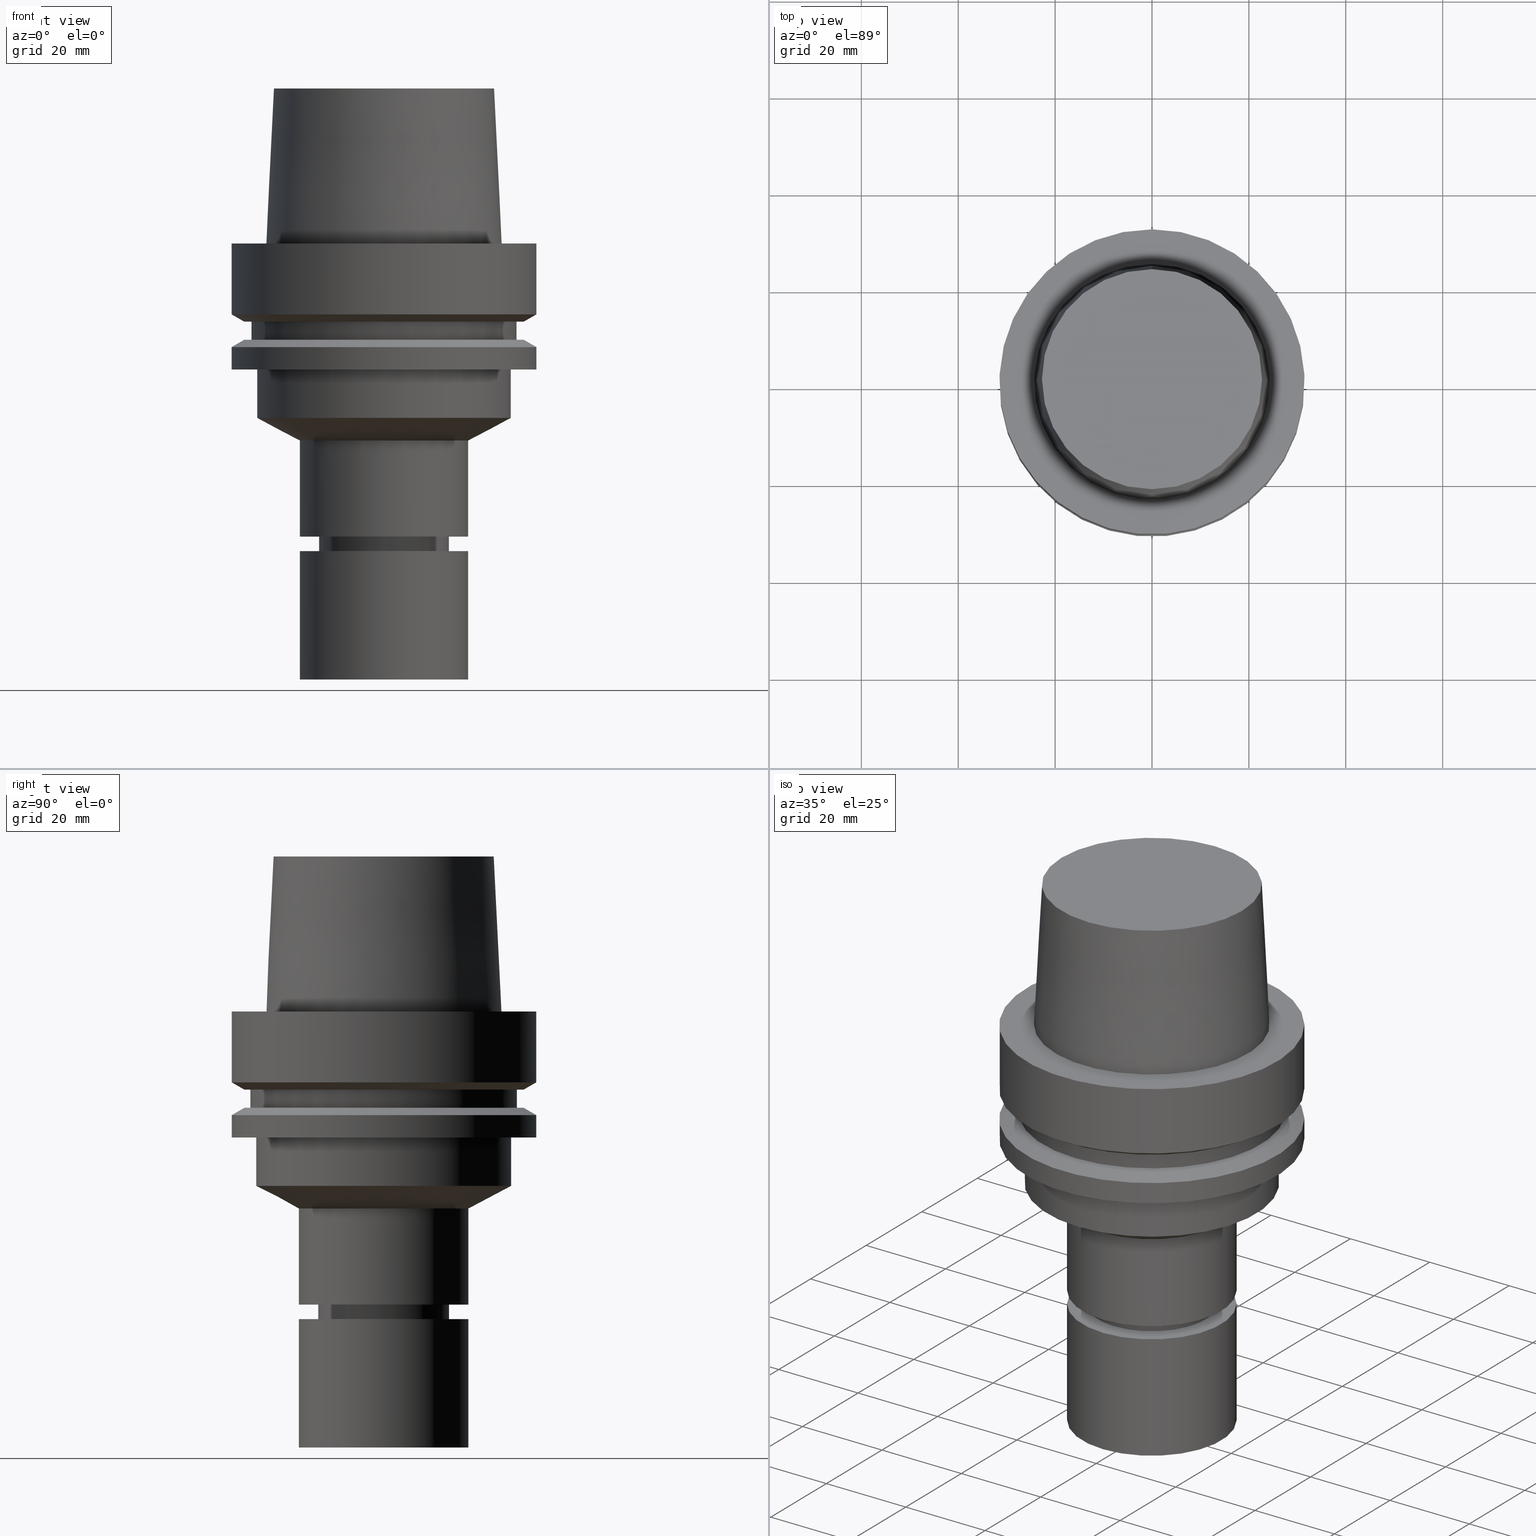
[diagram: canonical four-view strip — front | top / right | iso, engineering-drawing reading convention]
A machine part, canonical four-view strip (front | top / right | iso — engineering-drawing reading convention). The complete STEP part file that produces these views, byte-faithful:
ISO-10303-21;
HEADER;
FILE_DESCRIPTION((''),'1');
FILE_NAME('V:/90_\X2\53D65F9730C730FC30BF\X0\/00_\X2\6DE18DEF30C730FC30BF\X0\/ALL/HSK-BKUS\X2\52A05DE556F3\X0\_201801/HSK-A63-MEGAER/HSK-A63-MEGAER20-90NL.stp','2018-02-01T02:34:23',(''),(''),'Spatial Interop R21 SP3','Kubotek KeyCreator 2011 V10.0.2 (22737)',' ');
FILE_SCHEMA(('automotive_design'));
ENDSEC;
DATA;
#1=MECHANICAL_DESIGN_GEOMETRIC_PRESENTATION_REPRESENTATION(' ',(#14,#15,#16,#17,#18,#19,#20,#21,#22,#23,#24,#25,#26,#27,#28,#29,#30,#31,#32,#33,#34,#35,#36,#37,#38,#39,#40,#41,#42,#43,#44,#45,#46,#47,#48,#49,#50,#51,#52,#53,#54,#55,#56,#57,#58,#59),#10);
#2=PRODUCT_DEFINITION_CONTEXT('',#60,'design');
#3=APPLICATION_PROTOCOL_DEFINITION('INTERNATIONAL STANDARD','automotive_design',1994,#60);
#4=PRODUCT_CATEGORY_RELATIONSHIP('NONE','NONE',#61,#62);
#5=SHAPE_DEFINITION_REPRESENTATION(#63,#64);
#6=PRODUCT_DEFINITION_CONTEXT('',#65,'design');
#7=APPLICATION_PROTOCOL_DEFINITION('INTERNATIONAL STANDARD','automotive_design',1994,#65);
#8=PRODUCT_CATEGORY_RELATIONSHIP('NONE','NONE',#66,#67);
#9=SHAPE_DEFINITION_REPRESENTATION(#68,#69);
#10= (GEOMETRIC_REPRESENTATION_CONTEXT(3)GLOBAL_UNCERTAINTY_ASSIGNED_CONTEXT((#72))GLOBAL_UNIT_ASSIGNED_CONTEXT((#74,#75,#76))REPRESENTATION_CONTEXT('NONE','WORKSPACE'));
#14=STYLED_ITEM('',(#78,#79),#80);
#15=STYLED_ITEM('',(#81,#82),#83);
#16=STYLED_ITEM('',(#84),#85);
#17=STYLED_ITEM('',(#86,#87),#88);
#18=STYLED_ITEM('',(#89,#90),#91);
#19=STYLED_ITEM('',(#92,#93),#94);
#20=STYLED_ITEM('',(#95),#96);
#21=STYLED_ITEM('',(#97,#98),#99);
#22=STYLED_ITEM('',(#100,#101),#102);
#23=STYLED_ITEM('',(#103,#104),#105);
#24=STYLED_ITEM('',(#106),#107);
#25=STYLED_ITEM('',(#108,#109),#110);
#26=STYLED_ITEM('',(#111),#112);
#27=STYLED_ITEM('',(#113,#114),#115);
#28=STYLED_ITEM('',(#116,#117),#118);
#29=STYLED_ITEM('',(#119,#120),#121);
#30=STYLED_ITEM('',(#122),#123);
#31=STYLED_ITEM('',(#124,#125),#126);
#32=STYLED_ITEM('',(#127),#128);
#33=STYLED_ITEM('',(#129),#130);
#34=STYLED_ITEM('',(#131,#132),#133);
#35=STYLED_ITEM('',(#134),#135);
#36=STYLED_ITEM('',(#136,#137),#138);
#37=STYLED_ITEM('',(#139),#140);
#38=STYLED_ITEM('',(#141),#142);
#39=STYLED_ITEM('',(#143),#144);
#40=STYLED_ITEM('',(#145),#146);
#41=STYLED_ITEM('',(#147,#148),#149);
#42=STYLED_ITEM('',(#150,#151),#152);
#43=STYLED_ITEM('',(#153),#154);
#44=STYLED_ITEM('',(#155),#156);
#45=STYLED_ITEM('',(#157),#158);
#46=STYLED_ITEM('',(#159),#160);
#47=STYLED_ITEM('',(#161,#162),#163);
#48=STYLED_ITEM('',(#164),#165);
#49=STYLED_ITEM('',(#166,#167),#168);
#50=STYLED_ITEM('',(#169,#170),#171);
#51=STYLED_ITEM('',(#172,#173),#174);
#52=STYLED_ITEM('',(#175),#176);
#53=STYLED_ITEM('',(#177,#178),#179);
#54=STYLED_ITEM('',(#180,#181),#182);
#55=STYLED_ITEM('',(#183),#184);
#56=STYLED_ITEM('',(#185,#186),#187);
#57=STYLED_ITEM('',(#188,#189),#190);
#58=STYLED_ITEM('',(#191),#192);
#59=STYLED_ITEM('',(#193),#194);
#60=APPLICATION_CONTEXT(' ');
#61=PRODUCT_CATEGORY('part','NONE');
#62=PRODUCT_RELATED_PRODUCT_CATEGORY('detail',' ',(#195));
#63=PRODUCT_DEFINITION_SHAPE('NONE','NONE',#196);
#64=ADVANCED_BREP_SHAPE_REPRESENTATION('Unnamed[1]',(#179,#197),#10);
#65=APPLICATION_CONTEXT(' ');
#66=PRODUCT_CATEGORY('part','NONE');
#67=PRODUCT_RELATED_PRODUCT_CATEGORY('detail',' ',(#198));
#68=PRODUCT_DEFINITION_SHAPE('NONE','NONE',#199);
#69=ADVANCED_BREP_SHAPE_REPRESENTATION('Unnamed[1]',(#110,#200),#10);
#72=UNCERTAINTY_MEASURE_WITH_UNIT(LENGTH_MEASURE(1.0E-006),#74,'','');
#74= (CONVERSION_BASED_UNIT('MILLIMETRE',#203)LENGTH_UNIT()NAMED_UNIT(#206));
#75= (NAMED_UNIT(#208)PLANE_ANGLE_UNIT()SI_UNIT($,.RADIAN.));
#76= (NAMED_UNIT(#208)SOLID_ANGLE_UNIT()SI_UNIT($,.STERADIAN.));
#78=PRESENTATION_STYLE_ASSIGNMENT((#214));
#79=PRESENTATION_STYLE_ASSIGNMENT((#215));
#80=ADVANCED_FACE('Unnamed[1]',(#216,#217),#218,.T.);
#81=PRESENTATION_STYLE_ASSIGNMENT((#219));
#82=PRESENTATION_STYLE_ASSIGNMENT((#220));
#83=ADVANCED_FACE('Unnamed[1]',(#221,#222),#223,.T.);
#84=PRESENTATION_STYLE_ASSIGNMENT((#224));
#85=EDGE_CURVE('Unnamed[1]',#225,#225,#226,.T.);
#86=PRESENTATION_STYLE_ASSIGNMENT((#227));
#87=PRESENTATION_STYLE_ASSIGNMENT((#228));
#88=ADVANCED_FACE('Unnamed[1]',(#229,#230),#231,.T.);
#89=PRESENTATION_STYLE_ASSIGNMENT((#232));
#90=PRESENTATION_STYLE_ASSIGNMENT((#233));
#91=ADVANCED_FACE('Unnamed[1]',(#234,#235),#236,.T.);
#92=PRESENTATION_STYLE_ASSIGNMENT((#237));
#93=PRESENTATION_STYLE_ASSIGNMENT((#238));
#94=ADVANCED_FACE('Unnamed[1]',(#239,#240),#241,.T.);
#95=PRESENTATION_STYLE_ASSIGNMENT((#242));
#96=EDGE_CURVE('Unnamed[1]',#243,#243,#244,.T.);
#97=PRESENTATION_STYLE_ASSIGNMENT((#245));
#98=PRESENTATION_STYLE_ASSIGNMENT((#246));
#99=ADVANCED_FACE('Unnamed[1]',(#247,#248),#249,.T.);
#100=PRESENTATION_STYLE_ASSIGNMENT((#250));
#101=PRESENTATION_STYLE_ASSIGNMENT((#251));
#102=ADVANCED_FACE('Unnamed[1]',(#252),#253,.T.);
#103=PRESENTATION_STYLE_ASSIGNMENT((#254));
#104=PRESENTATION_STYLE_ASSIGNMENT((#255));
#105=ADVANCED_FACE('Unnamed[1]',(#256,#257),#258,.T.);
#106=PRESENTATION_STYLE_ASSIGNMENT((#259));
#107=EDGE_CURVE('Unnamed[1]',#260,#260,#261,.T.);
#108=PRESENTATION_STYLE_ASSIGNMENT((#262));
#109=PRESENTATION_STYLE_ASSIGNMENT((#263));
#110=MANIFOLD_SOLID_BREP('Unnamed[1]',#264);
#111=PRESENTATION_STYLE_ASSIGNMENT((#265));
#112=EDGE_CURVE('Unnamed[1]',#266,#266,#267,.T.);
#113=PRESENTATION_STYLE_ASSIGNMENT((#268));
#114=PRESENTATION_STYLE_ASSIGNMENT((#269));
#115=ADVANCED_FACE('Unnamed[1]',(#270,#271),#272,.T.);
#116=PRESENTATION_STYLE_ASSIGNMENT((#273));
#117=PRESENTATION_STYLE_ASSIGNMENT((#274));
#118=ADVANCED_FACE('Unnamed[1]',(#275,#276),#277,.T.);
#119=PRESENTATION_STYLE_ASSIGNMENT((#278));
#120=PRESENTATION_STYLE_ASSIGNMENT((#279));
#121=ADVANCED_FACE('Unnamed[1]',(#280,#281),#282,.T.);
#122=PRESENTATION_STYLE_ASSIGNMENT((#283));
#123=EDGE_CURVE('Unnamed[1]',#284,#284,#285,.T.);
#124=PRESENTATION_STYLE_ASSIGNMENT((#286));
#125=PRESENTATION_STYLE_ASSIGNMENT((#287));
#126=ADVANCED_FACE('Unnamed[1]',(#288),#289,.T.);
#127=PRESENTATION_STYLE_ASSIGNMENT((#290));
#128=EDGE_CURVE('Unnamed[1]',#291,#291,#292,.T.);
#129=PRESENTATION_STYLE_ASSIGNMENT((#293));
#130=EDGE_CURVE('Unnamed[1]',#294,#294,#295,.T.);
#131=PRESENTATION_STYLE_ASSIGNMENT((#296));
#132=PRESENTATION_STYLE_ASSIGNMENT((#297));
#133=ADVANCED_FACE('Unnamed[1]',(#298),#299,.T.);
#134=PRESENTATION_STYLE_ASSIGNMENT((#300));
#135=EDGE_CURVE('Unnamed[1]',#301,#301,#302,.T.);
#136=PRESENTATION_STYLE_ASSIGNMENT((#303));
#137=PRESENTATION_STYLE_ASSIGNMENT((#304));
#138=ADVANCED_FACE('Unnamed[1]',(#305,#306),#307,.T.);
#139=PRESENTATION_STYLE_ASSIGNMENT((#308));
#140=EDGE_CURVE('Unnamed[1]',#309,#309,#310,.T.);
#141=PRESENTATION_STYLE_ASSIGNMENT((#311));
#142=EDGE_CURVE('Unnamed[1]',#312,#312,#313,.T.);
#143=PRESENTATION_STYLE_ASSIGNMENT((#314));
#144=EDGE_CURVE('Unnamed[1]',#315,#315,#316,.T.);
#145=PRESENTATION_STYLE_ASSIGNMENT((#317));
#146=EDGE_CURVE('Unnamed[1]',#318,#318,#319,.T.);
#147=PRESENTATION_STYLE_ASSIGNMENT((#320));
#148=PRESENTATION_STYLE_ASSIGNMENT((#321));
#149=ADVANCED_FACE('Unnamed[1]',(#322,#323),#324,.T.);
#150=PRESENTATION_STYLE_ASSIGNMENT((#325));
#151=PRESENTATION_STYLE_ASSIGNMENT((#326));
#152=ADVANCED_FACE('Unnamed[1]',(#327),#328,.T.);
#153=PRESENTATION_STYLE_ASSIGNMENT((#329));
#154=EDGE_CURVE('Unnamed[1]',#330,#330,#331,.T.);
#155=PRESENTATION_STYLE_ASSIGNMENT((#332));
#156=EDGE_CURVE('Unnamed[1]',#333,#333,#334,.T.);
#157=PRESENTATION_STYLE_ASSIGNMENT((#335));
#158=EDGE_CURVE('Unnamed[1]',#336,#336,#337,.T.);
#159=PRESENTATION_STYLE_ASSIGNMENT((#338));
#160=EDGE_CURVE('Unnamed[1]',#339,#339,#340,.T.);
#161=PRESENTATION_STYLE_ASSIGNMENT((#341));
#162=PRESENTATION_STYLE_ASSIGNMENT((#342));
#163=ADVANCED_FACE('Unnamed[1]',(#343,#344),#345,.T.);
#164=PRESENTATION_STYLE_ASSIGNMENT((#346));
#165=EDGE_CURVE('Unnamed[1]',#347,#347,#348,.T.);
#166=PRESENTATION_STYLE_ASSIGNMENT((#349));
#167=PRESENTATION_STYLE_ASSIGNMENT((#350));
#168=ADVANCED_FACE('Unnamed[1]',(#351,#352),#353,.T.);
#169=PRESENTATION_STYLE_ASSIGNMENT((#354));
#170=PRESENTATION_STYLE_ASSIGNMENT((#355));
#171=ADVANCED_FACE('Unnamed[1]',(#356,#357),#358,.T.);
#172=PRESENTATION_STYLE_ASSIGNMENT((#359));
#173=PRESENTATION_STYLE_ASSIGNMENT((#360));
#174=ADVANCED_FACE('Unnamed[1]',(#361,#362),#363,.T.);
#175=PRESENTATION_STYLE_ASSIGNMENT((#364));
#176=EDGE_CURVE('Unnamed[1]',#365,#365,#366,.T.);
#177=PRESENTATION_STYLE_ASSIGNMENT((#367));
#178=PRESENTATION_STYLE_ASSIGNMENT((#368));
#179=MANIFOLD_SOLID_BREP('Unnamed[1]',#369);
#180=PRESENTATION_STYLE_ASSIGNMENT((#370));
#181=PRESENTATION_STYLE_ASSIGNMENT((#371));
#182=ADVANCED_FACE('Unnamed[1]',(#372,#373),#374,.T.);
#183=PRESENTATION_STYLE_ASSIGNMENT((#375));
#184=EDGE_CURVE('Unnamed[1]',#376,#376,#377,.T.);
#185=PRESENTATION_STYLE_ASSIGNMENT((#378));
#186=PRESENTATION_STYLE_ASSIGNMENT((#379));
#187=ADVANCED_FACE('Unnamed[1]',(#380,#381),#382,.T.);
#188=PRESENTATION_STYLE_ASSIGNMENT((#383));
#189=PRESENTATION_STYLE_ASSIGNMENT((#384));
#190=ADVANCED_FACE('Unnamed[1]',(#385,#386),#387,.T.);
#191=PRESENTATION_STYLE_ASSIGNMENT((#388));
#192=EDGE_CURVE('Unnamed[1]',#389,#389,#390,.T.);
#193=PRESENTATION_STYLE_ASSIGNMENT((#391));
#194=EDGE_CURVE('Unnamed[1]',#392,#392,#393,.T.);
#195=PRODUCT('Unnamed[1]','Unnamed[1]','PART-Unnamed[1]-DESC',(#394));
#196=PRODUCT_DEFINITION('NONE','NONE',#395,#2);
#197=AXIS2_PLACEMENT_3D('',#396,#397,#398);
#198=PRODUCT('Unnamed[1]','Unnamed[1]','PART-Unnamed[1]-DESC',(#399));
#199=PRODUCT_DEFINITION('NONE','NONE',#400,#6);
#200=AXIS2_PLACEMENT_3D('',#401,#402,#403);
#203=LENGTH_MEASURE_WITH_UNIT(LENGTH_MEASURE(1.0),#404);
#206=DIMENSIONAL_EXPONENTS(1.0,0.0,0.0,0.0,0.0,0.0,0.0);
#208=DIMENSIONAL_EXPONENTS(0.0,0.0,0.0,0.0,0.0,0.0,0.0);
#214=SURFACE_STYLE_USAGE(.BOTH.,#405);
#215=CURVE_STYLE('',#406,POSITIVE_LENGTH_MEASURE(1000.0),#407);
#216=FACE_BOUND('',#408,.T.);
#217=FACE_BOUND('',#409,.T.);
#218=CYLINDRICAL_SURFACE('',#410,26.3);
#219=SURFACE_STYLE_USAGE(.BOTH.,#411);
#220=CURVE_STYLE('',#412,POSITIVE_LENGTH_MEASURE(1000.0),#413);
#221=FACE_BOUND('',#414,.T.);
#222=FACE_OUTER_BOUND('',#415,.T.);
#223=PLANE('',#416);
#224=CURVE_STYLE('',#417,POSITIVE_LENGTH_MEASURE(1000.0),#418);
#225=VERTEX_POINT('',#419);
#226=CIRCLE('',#420,24.315);
#227=SURFACE_STYLE_USAGE(.BOTH.,#421);
#228=CURVE_STYLE('',#422,POSITIVE_LENGTH_MEASURE(1000.0),#423);
#229=FACE_BOUND('',#424,.T.);
#230=FACE_BOUND('',#425,.T.);
#231=CYLINDRICAL_SURFACE('',#426,27.4999999999994);
#232=SURFACE_STYLE_USAGE(.BOTH.,#427);
#233=CURVE_STYLE('',#428,POSITIVE_LENGTH_MEASURE(1000.0),#429);
#234=FACE_BOUND('',#430,.T.);
#235=FACE_BOUND('',#431,.T.);
#236=CYLINDRICAL_SURFACE('',#432,12.4999999999999);
#237=SURFACE_STYLE_USAGE(.BOTH.,#433);
#238=CURVE_STYLE('',#434,POSITIVE_LENGTH_MEASURE(1000.0),#435);
#239=FACE_OUTER_BOUND('',#436,.T.);
#240=FACE_BOUND('',#437,.T.);
#241=PLANE('',#438);
#242=CURVE_STYLE('',#439,POSITIVE_LENGTH_MEASURE(1000.0),#440);
#243=VERTEX_POINT('',#441);
#244=CIRCLE('',#442,11.3999999999977);
#245=SURFACE_STYLE_USAGE(.BOTH.,#443);
#246=CURVE_STYLE('',#444,POSITIVE_LENGTH_MEASURE(1000.0),#445);
#247=FACE_BOUND('',#446,.T.);
#248=FACE_BOUND('',#447,.T.);
#249=CYLINDRICAL_SURFACE('',#448,31.5);
#250=SURFACE_STYLE_USAGE(.BOTH.,#449);
#251=CURVE_STYLE('',#450,POSITIVE_LENGTH_MEASURE(1000.0),#451);
#252=FACE_OUTER_BOUND('',#452,.T.);
#253=PLANE('',#453);
#254=SURFACE_STYLE_USAGE(.BOTH.,#454);
#255=CURVE_STYLE('',#455,POSITIVE_LENGTH_MEASURE(1000.0),#456);
#256=FACE_BOUND('',#457,.T.);
#257=FACE_BOUND('',#458,.T.);
#258=CONICAL_SURFACE('',#459,30.1987976320959,1.04719755119657);
#259=CURVE_STYLE('',#460,POSITIVE_LENGTH_MEASURE(1000.0),#461);
#260=VERTEX_POINT('',#462);
#261=CIRCLE('',#463,28.8975952641919);
#262=SURFACE_STYLE_USAGE(.BOTH.,#464);
#263=CURVE_STYLE('',#465,POSITIVE_LENGTH_MEASURE(1000.0),#466);
#264=CLOSED_SHELL('',(#133,#102,#115));
#265=CURVE_STYLE('',#467,POSITIVE_LENGTH_MEASURE(1000.0),#468);
#266=VERTEX_POINT('',#469);
#267=CIRCLE('',#470,28.8975952641919);
#268=SURFACE_STYLE_USAGE(.BOTH.,#471);
#269=CURVE_STYLE('',#472,POSITIVE_LENGTH_MEASURE(1000.0),#473);
#270=FACE_BOUND('',#474,.T.);
#271=FACE_BOUND('',#475,.T.);
#272=CYLINDRICAL_SURFACE('',#476,17.5);
#273=SURFACE_STYLE_USAGE(.BOTH.,#477);
#274=CURVE_STYLE('',#478,POSITIVE_LENGTH_MEASURE(1000.0),#479);
#275=FACE_OUTER_BOUND('',#480,.T.);
#276=FACE_BOUND('',#481,.T.);
#277=PLANE('',#482);
#278=SURFACE_STYLE_USAGE(.BOTH.,#483);
#279=CURVE_STYLE('',#484,POSITIVE_LENGTH_MEASURE(1000.0),#485);
#280=FACE_BOUND('',#486,.T.);
#281=FACE_BOUND('',#487,.T.);
#282=CONICAL_SURFACE('',#488,13.0000000000002,1.04719755119484);
#283=CURVE_STYLE('',#489,POSITIVE_LENGTH_MEASURE(1000.0),#490);
#284=VERTEX_POINT('',#491);
#285=CIRCLE('',#492,27.5);
#286=SURFACE_STYLE_USAGE(.BOTH.,#493);
#287=CURVE_STYLE('',#494,POSITIVE_LENGTH_MEASURE(1000.0),#495);
#288=FACE_OUTER_BOUND('',#496,.T.);
#289=PLANE('',#497);
#290=CURVE_STYLE('',#498,POSITIVE_LENGTH_MEASURE(1000.0),#499);
#291=VERTEX_POINT('',#500);
#292=CIRCLE('',#501,26.3);
#293=CURVE_STYLE('',#502,POSITIVE_LENGTH_MEASURE(1000.0),#503);
#294=VERTEX_POINT('',#504);
#295=CIRCLE('',#505,22.715);
#296=SURFACE_STYLE_USAGE(.BOTH.,#506);
#297=CURVE_STYLE('',#507,POSITIVE_LENGTH_MEASURE(1000.0),#508);
#298=FACE_OUTER_BOUND('',#509,.T.);
#299=PLANE('',#510);
#300=CURVE_STYLE('',#511,POSITIVE_LENGTH_MEASURE(1000.0),#512);
#301=VERTEX_POINT('',#513);
#302=CIRCLE('',#514,31.5);
#303=SURFACE_STYLE_USAGE(.BOTH.,#515);
#304=CURVE_STYLE('',#516,POSITIVE_LENGTH_MEASURE(1000.0),#517);
#305=FACE_BOUND('',#518,.T.);
#306=FACE_OUTER_BOUND('',#519,.T.);
#307=PLANE('',#520);
#308=CURVE_STYLE('',#521,POSITIVE_LENGTH_MEASURE(1000.0),#522);
#309=VERTEX_POINT('',#523);
#310=CIRCLE('',#524,31.5);
#311=CURVE_STYLE('',#525,POSITIVE_LENGTH_MEASURE(1000.0),#526);
#312=VERTEX_POINT('',#527);
#313=CIRCLE('',#528,17.4999999999998);
#314=CURVE_STYLE('',#529,POSITIVE_LENGTH_MEASURE(1000.0),#530);
#315=VERTEX_POINT('',#531);
#316=CIRCLE('',#532,27.4999999999989);
#317=CURVE_STYLE('',#533,POSITIVE_LENGTH_MEASURE(1000.0),#534);
#318=VERTEX_POINT('',#535);
#319=CIRCLE('',#536,12.4999999999998);
#320=SURFACE_STYLE_USAGE(.BOTH.,#537);
#321=CURVE_STYLE('',#538,POSITIVE_LENGTH_MEASURE(1000.0),#539);
#322=FACE_BOUND('',#540,.T.);
#323=FACE_BOUND('',#541,.T.);
#324=CONICAL_SURFACE('',#542,23.515,0.0499583957219433);
#325=SURFACE_STYLE_USAGE(.BOTH.,#543);
#326=CURVE_STYLE('',#544,POSITIVE_LENGTH_MEASURE(1000.0),#545);
#327=FACE_OUTER_BOUND('',#546,.T.);
#328=PLANE('',#547);
#329=CURVE_STYLE('',#548,POSITIVE_LENGTH_MEASURE(1000.0),#549);
#330=VERTEX_POINT('',#550);
#331=CIRCLE('',#551,12.4999999999999);
#332=CURVE_STYLE('',#552,POSITIVE_LENGTH_MEASURE(1000.0),#553);
#333=VERTEX_POINT('',#554);
#334=CIRCLE('',#555,31.4999999999998);
#335=CURVE_STYLE('',#556,POSITIVE_LENGTH_MEASURE(1000.0),#557);
#336=VERTEX_POINT('',#558);
#337=CIRCLE('',#559,13.5000000000005);
#338=CURVE_STYLE('',#560,POSITIVE_LENGTH_MEASURE(1000.0),#561);
#339=VERTEX_POINT('',#562);
#340=CIRCLE('',#563,31.5000000000001);
#341=SURFACE_STYLE_USAGE(.BOTH.,#564);
#342=CURVE_STYLE('',#565,POSITIVE_LENGTH_MEASURE(1000.0),#566);
#343=FACE_BOUND('',#567,.T.);
#344=FACE_BOUND('',#568,.T.);
#345=CONICAL_SURFACE('',#569,30.1987976320959,1.04719755119657);
#346=CURVE_STYLE('',#570,POSITIVE_LENGTH_MEASURE(1000.0),#571);
#347=VERTEX_POINT('',#572);
#348=CIRCLE('',#573,13.4999999999908);
#349=SURFACE_STYLE_USAGE(.BOTH.,#574);
#350=CURVE_STYLE('',#575,POSITIVE_LENGTH_MEASURE(1000.0),#576);
#351=FACE_BOUND('',#577,.T.);
#352=FACE_BOUND('',#578,.T.);
#353=CONICAL_SURFACE('',#579,11.9499999999988,0.52359877559866);
#354=SURFACE_STYLE_USAGE(.BOTH.,#580);
#355=CURVE_STYLE('',#581,POSITIVE_LENGTH_MEASURE(1000.0),#582);
#356=FACE_BOUND('',#583,.T.);
#357=FACE_BOUND('',#584,.T.);
#358=CONICAL_SURFACE('',#585,21.8999999999999,1.08379854829247);
#359=SURFACE_STYLE_USAGE(.BOTH.,#586);
#360=CURVE_STYLE('',#587,POSITIVE_LENGTH_MEASURE(1000.0),#588);
#361=FACE_OUTER_BOUND('',#589,.T.);
#362=FACE_BOUND('',#590,.T.);
#363=PLANE('',#591);
#364=CURVE_STYLE('',#592,POSITIVE_LENGTH_MEASURE(1000.0),#593);
#365=VERTEX_POINT('',#594);
#366=CIRCLE('',#595,17.4999999999999);
#367=SURFACE_STYLE_USAGE(.BOTH.,#596);
#368=CURVE_STYLE('',#597,POSITIVE_LENGTH_MEASURE(1000.0),#598);
#369=CLOSED_SHELL('',(#152,#168,#91,#121,#182,#118,#190,#171,#80,#94,#187,#105,#83,#88,#174,#163,#99,#138,#149,#126));
#370=SURFACE_STYLE_USAGE(.BOTH.,#599);
#371=CURVE_STYLE('',#600,POSITIVE_LENGTH_MEASURE(1000.0),#601);
#372=FACE_BOUND('',#602,.T.);
#373=FACE_BOUND('',#603,.T.);
#374=CYLINDRICAL_SURFACE('',#604,13.4999999999956);
#375=CURVE_STYLE('',#605,POSITIVE_LENGTH_MEASURE(1000.0),#606);
#376=VERTEX_POINT('',#607);
#377=CIRCLE('',#608,26.3);
#378=SURFACE_STYLE_USAGE(.BOTH.,#609);
#379=CURVE_STYLE('',#610,POSITIVE_LENGTH_MEASURE(1000.0),#611);
#380=FACE_BOUND('',#612,.T.);
#381=FACE_BOUND('',#613,.T.);
#382=CYLINDRICAL_SURFACE('',#614,31.4999999999999);
#383=SURFACE_STYLE_USAGE(.BOTH.,#615);
#384=CURVE_STYLE('',#616,POSITIVE_LENGTH_MEASURE(1000.0),#617);
#385=FACE_BOUND('',#618,.T.);
#386=FACE_BOUND('',#619,.T.);
#387=CYLINDRICAL_SURFACE('',#620,17.4999999999999);
#388=CURVE_STYLE('',#621,POSITIVE_LENGTH_MEASURE(1000.0),#622);
#389=VERTEX_POINT('',#623);
#390=CIRCLE('',#624,17.5);
#391=CURVE_STYLE('',#625,POSITIVE_LENGTH_MEASURE(1000.0),#626);
#392=VERTEX_POINT('',#627);
#393=CIRCLE('',#628,17.5);
#394=PRODUCT_CONTEXT('',#60,'mechanical');
#395=PRODUCT_DEFINITION_FORMATION_WITH_SPECIFIED_SOURCE(' ','NONE',#195,.NOT_KNOWN.);
#396=CARTESIAN_POINT('',(0.0,0.0,0.0));
#397=DIRECTION('',(0.0,0.0,1.0));
#398=DIRECTION('',(1.0,0.0,0.0));
#399=PRODUCT_CONTEXT('',#65,'mechanical');
#400=PRODUCT_DEFINITION_FORMATION_WITH_SPECIFIED_SOURCE(' ','NONE',#198,.NOT_KNOWN.);
#401=CARTESIAN_POINT('',(0.0,0.0,0.0));
#402=DIRECTION('',(0.0,0.0,1.0));
#403=DIRECTION('',(1.0,0.0,0.0));
#404= (NAMED_UNIT(#206)LENGTH_UNIT()SI_UNIT(.MILLI.,.METRE.));
#405=SURFACE_SIDE_STYLE('',(#630));
#406=DRAUGHTING_PRE_DEFINED_CURVE_FONT('continuous');
#407=COLOUR_RGB('',0.0,1.0,0.0);
#408=EDGE_LOOP('',(#631));
#409=EDGE_LOOP('',(#632));
#410=AXIS2_PLACEMENT_3D('',#633,#634,#635);
#411=SURFACE_SIDE_STYLE('',(#636));
#412=DRAUGHTING_PRE_DEFINED_CURVE_FONT('continuous');
#413=COLOUR_RGB('',0.0,1.0,0.0);
#414=EDGE_LOOP('',(#637));
#415=EDGE_LOOP('',(#638));
#416=AXIS2_PLACEMENT_3D('',#639,#640,#641);
#417=DRAUGHTING_PRE_DEFINED_CURVE_FONT('continuous');
#418=COLOUR_RGB('',0.0,1.0,0.0);
#419=CARTESIAN_POINT('',(-2.99705514225764E-031,24.315,2.97772869212679E-015));
#420=AXIS2_PLACEMENT_3D('',#642,#643,#644);
#421=SURFACE_SIDE_STYLE('',(#645));
#422=DRAUGHTING_PRE_DEFINED_CURVE_FONT('continuous');
#423=COLOUR_RGB('',0.0,1.0,0.0);
#424=EDGE_LOOP('',(#646));
#425=EDGE_LOOP('',(#647));
#426=AXIS2_PLACEMENT_3D('',#648,#649,#650);
#427=SURFACE_SIDE_STYLE('',(#651));
#428=DRAUGHTING_PRE_DEFINED_CURVE_FONT('continuous');
#429=COLOUR_RGB('',0.0,1.0,0.0);
#430=EDGE_LOOP('',(#652));
#431=EDGE_LOOP('',(#653));
#432=AXIS2_PLACEMENT_3D('',#654,#655,#656);
#433=SURFACE_SIDE_STYLE('',(#657));
#434=DRAUGHTING_PRE_DEFINED_CURVE_FONT('continuous');
#435=COLOUR_RGB('',0.0,1.0,0.0);
#436=EDGE_LOOP('',(#658));
#437=EDGE_LOOP('',(#659));
#438=AXIS2_PLACEMENT_3D('',#660,#661,#662);
#439=DRAUGHTING_PRE_DEFINED_CURVE_FONT('continuous');
#440=COLOUR_RGB('',0.0,1.0,0.0);
#441=CARTESIAN_POINT('',(4.9108336645809E-015,11.3999999999978,-80.2000000000003));
#442=AXIS2_PLACEMENT_3D('',#663,#664,#665);
#443=SURFACE_SIDE_STYLE('',(#666));
#444=DRAUGHTING_PRE_DEFINED_CURVE_FONT('continuous');
#445=COLOUR_RGB('',0.0,1.0,0.0);
#446=EDGE_LOOP('',(#667));
#447=EDGE_LOOP('',(#668));
#448=AXIS2_PLACEMENT_3D('',#669,#670,#671);
#449=SURFACE_SIDE_STYLE('',(#672));
#450=DRAUGHTING_PRE_DEFINED_CURVE_FONT('continuous');
#451=COLOUR_RGB('',0.0,1.0,0.0);
#452=EDGE_LOOP('',(#673));
#453=AXIS2_PLACEMENT_3D('',#674,#675,#676);
#454=SURFACE_SIDE_STYLE('',(#677));
#455=DRAUGHTING_PRE_DEFINED_CURVE_FONT('continuous');
#456=COLOUR_RGB('',0.0,1.0,0.0);
#457=EDGE_LOOP('',(#678));
#458=EDGE_LOOP('',(#679));
#459=AXIS2_PLACEMENT_3D('',#680,#681,#682);
#460=DRAUGHTING_PRE_DEFINED_CURVE_FONT('continuous');
#461=COLOUR_RGB('',0.0,1.0,0.0);
#462=CARTESIAN_POINT('',(9.87371481812551E-016,28.8975952641919,-16.125));
#463=AXIS2_PLACEMENT_3D('',#683,#684,#685);
#464=SURFACE_SIDE_STYLE('',(#686));
#465=DRAUGHTING_PRE_DEFINED_CURVE_FONT('continuous');
#466=COLOUR_RGB('',0.0,1.0,0.0);
#467=DRAUGHTING_PRE_DEFINED_CURVE_FONT('continuous');
#468=COLOUR_RGB('',0.0,1.0,0.0);
#469=CARTESIAN_POINT('',(1.21699275665268E-015,28.8975952641919,-19.875));
#470=AXIS2_PLACEMENT_3D('',#687,#688,#689);
#471=SURFACE_SIDE_STYLE('',(#690));
#472=DRAUGHTING_PRE_DEFINED_CURVE_FONT('continuous');
#473=COLOUR_RGB('',0.0,1.0,0.0);
#474=EDGE_LOOP('',(#691));
#475=EDGE_LOOP('',(#692));
#476=AXIS2_PLACEMENT_3D('',#693,#694,#695);
#477=SURFACE_SIDE_STYLE('',(#696));
#478=DRAUGHTING_PRE_DEFINED_CURVE_FONT('continuous');
#479=COLOUR_RGB('',0.0,1.0,0.0);
#480=EDGE_LOOP('',(#697));
#481=EDGE_LOOP('',(#698));
#482=AXIS2_PLACEMENT_3D('',#699,#700,#701);
#483=SURFACE_SIDE_STYLE('',(#702));
#484=DRAUGHTING_PRE_DEFINED_CURVE_FONT('continuous');
#485=COLOUR_RGB('',0.0,1.0,0.0);
#486=EDGE_LOOP('',(#703));
#487=EDGE_LOOP('',(#704));
#488=AXIS2_PLACEMENT_3D('',#705,#706,#707);
#489=DRAUGHTING_PRE_DEFINED_CURVE_FONT('continuous');
#490=COLOUR_RGB('',0.0,1.0,0.0);
#491=CARTESIAN_POINT('',(9.87371481812537E-016,27.5,-16.1249999999997));
#492=AXIS2_PLACEMENT_3D('',#708,#709,#710);
#493=SURFACE_SIDE_STYLE('',(#711));
#494=DRAUGHTING_PRE_DEFINED_CURVE_FONT('continuous');
#495=COLOUR_RGB('',0.0,1.0,0.0);
#496=EDGE_LOOP('',(#712));
#497=AXIS2_PLACEMENT_3D('',#713,#714,#715);
#498=DRAUGHTING_PRE_DEFINED_CURVE_FONT('continuous');
#499=COLOUR_RGB('',0.0,1.0,0.0);
#500=CARTESIAN_POINT('',(1.59204083889154E-015,26.3,-25.9999999999997));
#501=AXIS2_PLACEMENT_3D('',#716,#717,#718);
#502=DRAUGHTING_PRE_DEFINED_CURVE_FONT('continuous');
#503=COLOUR_RGB('',0.0,1.0,0.0);
#504=CARTESIAN_POINT('',(-1.95943487863576E-015,22.715,32.0));
#505=AXIS2_PLACEMENT_3D('',#719,#720,#721);
#506=SURFACE_SIDE_STYLE('',(#722));
#507=DRAUGHTING_PRE_DEFINED_CURVE_FONT('continuous');
#508=COLOUR_RGB('',0.0,1.0,0.0);
#509=EDGE_LOOP('',(#723));
#510=AXIS2_PLACEMENT_3D('',#724,#725,#726);
#511=DRAUGHTING_PRE_DEFINED_CURVE_FONT('continuous');
#512=COLOUR_RGB('',0.0,1.0,0.0);
#513=CARTESIAN_POINT('',(8.95369947681261E-016,31.5,-14.6225009252407));
#514=AXIS2_PLACEMENT_3D('',#727,#728,#729);
#515=SURFACE_SIDE_STYLE('',(#730));
#516=DRAUGHTING_PRE_DEFINED_CURVE_FONT('continuous');
#517=COLOUR_RGB('',0.0,1.0,0.0);
#518=EDGE_LOOP('',(#731));
#519=EDGE_LOOP('',(#732));
#520=AXIS2_PLACEMENT_3D('',#733,#734,#735);
#521=DRAUGHTING_PRE_DEFINED_CURVE_FONT('continuous');
#522=COLOUR_RGB('',0.0,1.0,0.0);
#523=CARTESIAN_POINT('',(1.30899429078397E-015,31.5,-21.3774990747592));
#524=AXIS2_PLACEMENT_3D('',#736,#737,#738);
#525=DRAUGHTING_PRE_DEFINED_CURVE_FONT('continuous');
#526=COLOUR_RGB('',0.0,1.0,0.0);
#527=CARTESIAN_POINT('',(2.48970289259618E-015,17.4999999999998,-40.6599338573311));
#528=AXIS2_PLACEMENT_3D('',#739,#740,#741);
#529=DRAUGHTING_PRE_DEFINED_CURVE_FONT('continuous');
#530=COLOUR_RGB('',0.0,1.0,0.0);
#531=CARTESIAN_POINT('',(1.21699275665276E-015,27.4999999999989,-19.8750000000013));
#532=AXIS2_PLACEMENT_3D('',#742,#743,#744);
#533=DRAUGHTING_PRE_DEFINED_CURVE_FONT('continuous');
#534=COLOUR_RGB('',0.0,1.0,0.0);
#535=CARTESIAN_POINT('',(4.79417038832104E-015,12.4999999999998,-78.2947441116725));
#536=AXIS2_PLACEMENT_3D('',#745,#746,#747);
#537=SURFACE_SIDE_STYLE('',(#748));
#538=DRAUGHTING_PRE_DEFINED_CURVE_FONT('continuous');
#539=COLOUR_RGB('',0.0,1.0,0.0);
#540=EDGE_LOOP('',(#749));
#541=EDGE_LOOP('',(#750));
#542=AXIS2_PLACEMENT_3D('',#751,#752,#753);
#543=SURFACE_SIDE_STYLE('',(#754));
#544=DRAUGHTING_PRE_DEFINED_CURVE_FONT('continuous');
#545=COLOUR_RGB('',0.0,1.0,0.0);
#546=EDGE_LOOP('',(#755));
#547=AXIS2_PLACEMENT_3D('',#756,#757,#758);
#548=DRAUGHTING_PRE_DEFINED_CURVE_FONT('continuous');
#549=COLOUR_RGB('',0.0,1.0,0.0);
#550=CARTESIAN_POINT('',(4.09642365087913E-015,12.4999999999999,-66.8996751345975));
#551=AXIS2_PLACEMENT_3D('',#759,#760,#761);
#552=DRAUGHTING_PRE_DEFINED_CURVE_FONT('continuous');
#553=COLOUR_RGB('',0.0,1.0,0.0);
#554=CARTESIAN_POINT('',(1.59204083889155E-015,31.4999999999998,-25.9999999999999));
#555=AXIS2_PLACEMENT_3D('',#762,#763,#764);
#556=DRAUGHTING_PRE_DEFINED_CURVE_FONT('continuous');
#557=COLOUR_RGB('',0.0,1.0,0.0);
#558=CARTESIAN_POINT('',(4.06107114292147E-015,13.5000000000005,-66.3223248654052));
#559=AXIS2_PLACEMENT_3D('',#765,#766,#767);
#560=DRAUGHTING_PRE_DEFINED_CURVE_FONT('continuous');
#561=COLOUR_RGB('',0.0,1.0,0.0);
#562=CARTESIAN_POINT('',(-3.88267476788467E-031,31.5000000000001,3.85763741731417E-015));
#563=AXIS2_PLACEMENT_3D('',#768,#769,#770);
#564=SURFACE_SIDE_STYLE('',(#771));
#565=DRAUGHTING_PRE_DEFINED_CURVE_FONT('continuous');
#566=COLOUR_RGB('',0.0,1.0,0.0);
#567=EDGE_LOOP('',(#772));
#568=EDGE_LOOP('',(#773));
#569=AXIS2_PLACEMENT_3D('',#774,#775,#776);
#570=DRAUGHTING_PRE_DEFINED_CURVE_FONT('continuous');
#571=COLOUR_RGB('',0.0,1.0,0.0);
#572=CARTESIAN_POINT('',(3.70455656742073E-015,13.4999999999908,-60.4999999999998));
#573=AXIS2_PLACEMENT_3D('',#777,#778,#779);
#574=SURFACE_SIDE_STYLE('',(#780));
#575=DRAUGHTING_PRE_DEFINED_CURVE_FONT('continuous');
#576=COLOUR_RGB('',0.0,1.0,0.0);
#577=EDGE_LOOP('',(#781));
#578=EDGE_LOOP('',(#782));
#579=AXIS2_PLACEMENT_3D('',#783,#784,#785);
#580=SURFACE_SIDE_STYLE('',(#786));
#581=DRAUGHTING_PRE_DEFINED_CURVE_FONT('continuous');
#582=COLOUR_RGB('',0.0,1.0,0.0);
#583=EDGE_LOOP('',(#787));
#584=EDGE_LOOP('',(#788));
#585=AXIS2_PLACEMENT_3D('',#789,#790,#791);
#586=SURFACE_SIDE_STYLE('',(#792));
#587=DRAUGHTING_PRE_DEFINED_CURVE_FONT('continuous');
#588=COLOUR_RGB('',0.0,1.0,0.0);
#589=EDGE_LOOP('',(#793));
#590=EDGE_LOOP('',(#794));
#591=AXIS2_PLACEMENT_3D('',#795,#796,#797);
#592=DRAUGHTING_PRE_DEFINED_CURVE_FONT('continuous');
#593=COLOUR_RGB('',0.0,1.0,0.0);
#594=CARTESIAN_POINT('',(3.70455656742073E-015,17.4999999999999,-60.4999999999998));
#595=AXIS2_PLACEMENT_3D('',#798,#799,#800);
#596=SURFACE_SIDE_STYLE('',(#801));
#597=DRAUGHTING_PRE_DEFINED_CURVE_FONT('continuous');
#598=COLOUR_RGB('',0.0,1.0,0.0);
#599=SURFACE_SIDE_STYLE('',(#802));
#600=DRAUGHTING_PRE_DEFINED_CURVE_FONT('continuous');
#601=COLOUR_RGB('',0.0,1.0,0.0);
#602=EDGE_LOOP('',(#803));
#603=EDGE_LOOP('',(#804));
#604=AXIS2_PLACEMENT_3D('',#805,#806,#807);
#605=DRAUGHTING_PRE_DEFINED_CURVE_FONT('continuous');
#606=COLOUR_RGB('',0.0,1.0,0.0);
#607=CARTESIAN_POINT('',(2.20436423846525E-015,26.3,-36.0000000000003));
#608=AXIS2_PLACEMENT_3D('',#808,#809,#810);
#609=SURFACE_SIDE_STYLE('',(#811));
#610=DRAUGHTING_PRE_DEFINED_CURVE_FONT('continuous');
#611=COLOUR_RGB('',0.0,1.0,0.0);
#612=EDGE_LOOP('',(#812));
#613=EDGE_LOOP('',(#813));
#614=AXIS2_PLACEMENT_3D('',#814,#815,#816);
#615=SURFACE_SIDE_STYLE('',(#817));
#616=DRAUGHTING_PRE_DEFINED_CURVE_FONT('continuous');
#617=COLOUR_RGB('',0.0,1.0,0.0);
#618=EDGE_LOOP('',(#818));
#619=EDGE_LOOP('',(#819));
#620=AXIS2_PLACEMENT_3D('',#820,#821,#822);
#621=DRAUGHTING_PRE_DEFINED_CURVE_FONT('continuous');
#622=COLOUR_RGB('',0.0,1.0,0.0);
#623=CARTESIAN_POINT('',(5.51091059616309E-015,17.5,-89.9999999999999));
#624=AXIS2_PLACEMENT_3D('',#823,#824,#825);
#625=DRAUGHTING_PRE_DEFINED_CURVE_FONT('continuous');
#626=COLOUR_RGB('',0.0,1.0,0.0);
#627=CARTESIAN_POINT('',(3.88825452162421E-015,17.5,-63.5000152587891));
#628=AXIS2_PLACEMENT_3D('',#826,#827,#828);
#630=SURFACE_STYLE_FILL_AREA(#829);
#631=ORIENTED_EDGE('',*,*,#128,.F.);
#632=ORIENTED_EDGE('',*,*,#184,.T.);
#633=CARTESIAN_POINT('',(1.8982025386784E-015,3.79640507735679E-015,-31.0));
#634=DIRECTION('',(-6.12323399573677E-017,-1.22464679914735E-016,1.0));
#635=DIRECTION('',(-1.23259516440783E-032,1.0,1.22464679914735E-016));
#636=SURFACE_STYLE_FILL_AREA(#830);
#637=ORIENTED_EDGE('',*,*,#144,.F.);
#638=ORIENTED_EDGE('',*,*,#112,.T.);
#639=CARTESIAN_POINT('',(1.21699275665272E-015,28.1987976320954,-19.8750000000006));
#640=DIRECTION('',(-6.12323399573677E-017,-9.58463617675421E-013,1.0));
#641=DIRECTION('',(-5.86937972270006E-029,1.0,9.58463617675421E-013));
#642=CARTESIAN_POINT('',(0.0,0.0,0.0));
#643=DIRECTION('',(-6.12323399573677E-017,-1.22464679914735E-016,1.0));
#644=DIRECTION('',(-1.23259516440783E-032,1.0,1.22464679914735E-016));
#645=SURFACE_STYLE_FILL_AREA(#831);
#646=ORIENTED_EDGE('',*,*,#123,.F.);
#647=ORIENTED_EDGE('',*,*,#144,.T.);
#648=CARTESIAN_POINT('',(1.10218211923265E-015,2.2043642384653E-015,-18.0000000000005));
#649=DIRECTION('',(-6.12323399573677E-017,-1.22464679914735E-016,1.0));
#650=DIRECTION('',(-1.23259516440783E-032,1.0,1.22464679914735E-016));
#651=SURFACE_STYLE_FILL_AREA(#832);
#652=ORIENTED_EDGE('',*,*,#154,.F.);
#653=ORIENTED_EDGE('',*,*,#146,.T.);
#654=CARTESIAN_POINT('',(4.44529701960009E-015,8.89059403920017E-015,-72.597209623135));
#655=DIRECTION('',(-6.12323399573677E-017,-1.22464679914735E-016,1.0));
#656=DIRECTION('',(-1.23259516440783E-032,1.0,1.22464679914735E-016));
#657=SURFACE_STYLE_FILL_AREA(#833);
#658=ORIENTED_EDGE('',*,*,#156,.F.);
#659=ORIENTED_EDGE('',*,*,#128,.T.);
#660=CARTESIAN_POINT('',(1.59204083889155E-015,28.8999999999999,-25.9999999999998));
#661=DIRECTION('',(6.12323399573677E-017,-4.01871712910923E-014,-1.0));
#662=DIRECTION('',(-2.45592738169036E-030,-1.0,4.01871712910923E-014));
#663=CARTESIAN_POINT('',(4.9108336645809E-015,9.8216673291618E-015,-80.2000000000003));
#664=DIRECTION('',(-6.12323399573677E-017,-1.22464679914735E-016,1.0));
#665=DIRECTION('',(-1.23259516440783E-032,1.0,1.22464679914735E-016));
#666=SURFACE_STYLE_FILL_AREA(#834);
#667=ORIENTED_EDGE('',*,*,#160,.F.);
#668=ORIENTED_EDGE('',*,*,#135,.T.);
#669=CARTESIAN_POINT('',(4.47684973840631E-016,8.95369947681262E-016,-7.31125046262035));
#670=DIRECTION('',(-6.12323399573677E-017,-1.22464679914735E-016,1.0));
#671=DIRECTION('',(-1.23259516440783E-032,1.0,1.22464679914735E-016));
#672=SURFACE_STYLE_FILL_AREA(#835);
#673=ORIENTED_EDGE('',*,*,#194,.F.);
#674=CARTESIAN_POINT('',(3.88825452162421E-015,8.75000000000001,-63.5000152587891));
#675=DIRECTION('',(-6.12323399573677E-017,-1.22464679914735E-016,1.0));
#676=DIRECTION('',(1.23259516440783E-032,-1.0,-1.22464679914735E-016));
#677=SURFACE_STYLE_FILL_AREA(#836);
#678=ORIENTED_EDGE('',*,*,#112,.F.);
#679=ORIENTED_EDGE('',*,*,#140,.T.);
#680=CARTESIAN_POINT('',(1.26299352371833E-015,2.52598704743665E-015,-20.6262495373796));
#681=DIRECTION('',(6.12323399573677E-017,1.22464679914735E-016,-1.0));
#682=DIRECTION('',(-1.23259516440783E-032,1.0,1.22464679914735E-016));
#683=CARTESIAN_POINT('',(9.87371481812552E-016,1.9747429636251E-015,-16.125));
#684=DIRECTION('',(-6.12323399573677E-017,-1.22464679914735E-016,1.0));
#685=DIRECTION('',(-1.23259516440783E-032,1.0,1.22464679914735E-016));
#686=SURFACE_STYLE_FILL_AREA(#837);
#687=CARTESIAN_POINT('',(1.21699275665268E-015,2.43398551330536E-015,-19.875));
#688=DIRECTION('',(-6.12323399573677E-017,-1.22464679914735E-016,1.0));
#689=DIRECTION('',(-1.23259516440783E-032,1.0,1.22464679914735E-016));
#690=SURFACE_STYLE_FILL_AREA(#838);
#691=ORIENTED_EDGE('',*,*,#192,.F.);
#692=ORIENTED_EDGE('',*,*,#194,.T.);
#693=CARTESIAN_POINT('',(4.69958255889365E-015,9.39916511778729E-015,-76.7500076293945));
#694=DIRECTION('',(6.12323399573677E-017,1.22464679914735E-016,-1.0));
#695=DIRECTION('',(-1.23259516440783E-032,1.0,1.22464679914735E-016));
#696=SURFACE_STYLE_FILL_AREA(#839);
#697=ORIENTED_EDGE('',*,*,#176,.F.);
#698=ORIENTED_EDGE('',*,*,#165,.T.);
#699=CARTESIAN_POINT('',(3.70455656742073E-015,15.4999999999954,-60.4999999999998));
#700=DIRECTION('',(6.12323399573677E-017,1.22464679914735E-016,-1.0));
#701=DIRECTION('',(1.23259516440783E-032,-1.0,-1.22464679914735E-016));
#702=SURFACE_STYLE_FILL_AREA(#840);
#703=ORIENTED_EDGE('',*,*,#158,.F.);
#704=ORIENTED_EDGE('',*,*,#154,.T.);
#705=CARTESIAN_POINT('',(4.0787473969003E-015,8.1574947938006E-015,-66.6110000000014));
#706=DIRECTION('',(-6.12323399573677E-017,-1.22464679914735E-016,1.0));
#707=DIRECTION('',(-1.23259516440783E-032,1.0,1.22464679914735E-016));
#708=CARTESIAN_POINT('',(9.87371481812538E-016,1.97474296362508E-015,-16.1249999999997));
#709=DIRECTION('',(-6.12323399573677E-017,-1.22464679914735E-016,1.0));
#710=DIRECTION('',(-1.23259516440783E-032,1.0,1.22464679914735E-016));
#711=SURFACE_STYLE_FILL_AREA(#841);
#712=ORIENTED_EDGE('',*,*,#130,.T.);
#713=CARTESIAN_POINT('',(-1.95943487863576E-015,11.3575,32.0));
#714=DIRECTION('',(-6.12323399573677E-017,9.72362339746437E-016,1.0));
#715=DIRECTION('',(5.47128686183263E-032,1.0,-9.72362339746437E-016));
#716=CARTESIAN_POINT('',(1.59204083889154E-015,3.18408167778308E-015,-25.9999999999997));
#717=DIRECTION('',(-6.12323399573677E-017,-1.22464679914735E-016,1.0));
#718=DIRECTION('',(-1.23259516440783E-032,1.0,1.22464679914735E-016));
#719=CARTESIAN_POINT('',(-1.95943487863576E-015,-3.91886975727153E-015,32.0));
#720=DIRECTION('',(-6.12323399573676E-017,-1.22464679914735E-016,1.0));
#721=DIRECTION('',(-1.23259516440783E-032,1.0,1.22464679914735E-016));
#722=SURFACE_STYLE_FILL_AREA(#842);
#723=ORIENTED_EDGE('',*,*,#192,.T.);
#724=CARTESIAN_POINT('',(5.51091059616309E-015,8.75000000000002,-89.9999999999999));
#725=DIRECTION('',(6.12323399573677E-017,1.22464679914735E-016,-1.0));
#726=DIRECTION('',(-1.23259516440783E-032,1.0,1.22464679914735E-016));
#727=CARTESIAN_POINT('',(8.95369947681262E-016,1.79073989536252E-015,-14.6225009252407));
#728=DIRECTION('',(-6.12323399573677E-017,-1.22464679914735E-016,1.0));
#729=DIRECTION('',(-1.23259516440783E-032,1.0,1.22464679914735E-016));
#730=SURFACE_STYLE_FILL_AREA(#843);
#731=ORIENTED_EDGE('',*,*,#85,.F.);
#732=ORIENTED_EDGE('',*,*,#160,.T.);
#733=CARTESIAN_POINT('',(-3.43986495507116E-031,27.9075,3.41768305472048E-015));
#734=DIRECTION('',(-6.12323399573677E-017,-1.22464679914735E-016,1.0));
#735=DIRECTION('',(-1.23259516440783E-032,1.0,1.22464679914735E-016));
#736=CARTESIAN_POINT('',(1.30899429078397E-015,2.61798858156794E-015,-21.3774990747592));
#737=DIRECTION('',(-6.12323399573677E-017,-1.22464679914735E-016,1.0));
#738=DIRECTION('',(-1.23259516440783E-032,1.0,1.22464679914735E-016));
#739=CARTESIAN_POINT('',(2.48970289259618E-015,4.97940578519236E-015,-40.6599338573311));
#740=DIRECTION('',(-6.12323399573677E-017,-1.22464679914735E-016,1.0));
#741=DIRECTION('',(-1.23259516440783E-032,1.0,1.22464679914735E-016));
#742=CARTESIAN_POINT('',(1.21699275665276E-015,2.43398551330552E-015,-19.8750000000013));
#743=DIRECTION('',(-6.12323399573677E-017,-1.22464679914735E-016,1.0));
#744=DIRECTION('',(-1.23259516440783E-032,1.0,1.22464679914735E-016));
#745=CARTESIAN_POINT('',(4.79417038832104E-015,9.58834077664208E-015,-78.2947441116725));
#746=DIRECTION('',(-6.12323399573677E-017,-1.22464679914735E-016,1.0));
#747=DIRECTION('',(-1.23259516440783E-032,1.0,1.22464679914735E-016));
#748=SURFACE_STYLE_FILL_AREA(#844);
#749=ORIENTED_EDGE('',*,*,#130,.F.);
#750=ORIENTED_EDGE('',*,*,#85,.T.);
#751=CARTESIAN_POINT('',(-9.79717439317882E-016,-1.95943487863576E-015,16.0));
#752=DIRECTION('',(6.12323399573677E-017,1.22464679914735E-016,-1.0));
#753=DIRECTION('',(-1.23259516440783E-032,1.0,1.22464679914735E-016));
#754=SURFACE_STYLE_FILL_AREA(#845);
#755=ORIENTED_EDGE('',*,*,#96,.F.);
#756=CARTESIAN_POINT('',(4.9108336645809E-015,5.69999999999888,-80.2000000000002));
#757=DIRECTION('',(6.12323399573677E-017,-1.60828959602311E-014,-1.0));
#758=DIRECTION('',(-9.79966200205077E-031,-1.0,1.60828959602311E-014));
#759=CARTESIAN_POINT('',(4.09642365087913E-015,8.19284730175826E-015,-66.8996751345975));
#760=DIRECTION('',(-6.12323399573677E-017,-1.22464679914735E-016,1.0));
#761=DIRECTION('',(-1.23259516440783E-032,1.0,1.22464679914735E-016));
#762=CARTESIAN_POINT('',(1.59204083889155E-015,3.1840816777831E-015,-25.9999999999999));
#763=DIRECTION('',(-6.12323399573676E-017,-1.22464679914735E-016,1.0));
#764=DIRECTION('',(-1.23259516440783E-032,1.0,1.22464679914735E-016));
#765=CARTESIAN_POINT('',(4.06107114292147E-015,8.12214228584294E-015,-66.3223248654052));
#766=DIRECTION('',(-6.12323399573677E-017,-1.22464679914735E-016,1.0));
#767=DIRECTION('',(-1.23259516440783E-032,1.0,1.22464679914735E-016));
#768=CARTESIAN_POINT('',(0.0,0.0,0.0));
#769=DIRECTION('',(-6.12323399573677E-017,-1.22464679914735E-016,1.0));
#770=DIRECTION('',(-1.23259516440783E-032,1.0,1.22464679914735E-016));
#771=SURFACE_STYLE_FILL_AREA(#846);
#772=ORIENTED_EDGE('',*,*,#135,.F.);
#773=ORIENTED_EDGE('',*,*,#107,.T.);
#774=CARTESIAN_POINT('',(9.41370714746907E-016,1.88274142949381E-015,-15.3737504626203));
#775=DIRECTION('',(-6.12323399573677E-017,-1.22464679914735E-016,1.0));
#776=DIRECTION('',(-1.23259516440783E-032,1.0,1.22464679914735E-016));
#777=CARTESIAN_POINT('',(3.70455656742073E-015,7.40911313484146E-015,-60.4999999999998));
#778=DIRECTION('',(-6.12323399573677E-017,-1.22464679914735E-016,1.0));
#779=DIRECTION('',(-1.23259516440783E-032,1.0,1.22464679914735E-016));
#780=SURFACE_STYLE_FILL_AREA(#847);
#781=ORIENTED_EDGE('',*,*,#146,.F.);
#782=ORIENTED_EDGE('',*,*,#96,.T.);
#783=CARTESIAN_POINT('',(4.85250202645097E-015,9.70500405290194E-015,-79.2473720558364));
#784=DIRECTION('',(-6.12323399573677E-017,-1.22464679914735E-016,1.0));
#785=DIRECTION('',(-1.23259516440783E-032,1.0,1.22464679914735E-016));
#786=SURFACE_STYLE_FILL_AREA(#848);
#787=ORIENTED_EDGE('',*,*,#184,.F.);
#788=ORIENTED_EDGE('',*,*,#142,.T.);
#789=CARTESIAN_POINT('',(2.34703356553072E-015,4.69406713106143E-015,-38.3299669286657));
#790=DIRECTION('',(-6.12323399573677E-017,-1.22464679914735E-016,1.0));
#791=DIRECTION('',(-1.23259516440783E-032,1.0,1.22464679914735E-016));
#792=SURFACE_STYLE_FILL_AREA(#849);
#793=ORIENTED_EDGE('',*,*,#107,.F.);
#794=ORIENTED_EDGE('',*,*,#123,.T.);
#795=CARTESIAN_POINT('',(9.87371481812544E-016,28.1987976320959,-16.1249999999999));
#796=DIRECTION('',(6.12323399573677E-017,-1.65108768595307E-013,-1.0));
#797=DIRECTION('',(-1.01051690958394E-029,-1.0,1.65108768595307E-013));
#798=CARTESIAN_POINT('',(3.70455656742073E-015,7.40911313484146E-015,-60.4999999999998));
#799=DIRECTION('',(-6.12323399573677E-017,-1.22464679914735E-016,1.0));
#800=DIRECTION('',(-1.23259516440783E-032,1.0,1.22464679914735E-016));
#801=SURFACE_STYLE_FILL_AREA(#850);
#802=SURFACE_STYLE_FILL_AREA(#851);
#803=ORIENTED_EDGE('',*,*,#165,.F.);
#804=ORIENTED_EDGE('',*,*,#158,.T.);
#805=CARTESIAN_POINT('',(3.8828138551711E-015,7.7656277103422E-015,-63.4111624327025));
#806=DIRECTION('',(-6.12323399573677E-017,-1.22464679914735E-016,1.0));
#807=DIRECTION('',(-1.23259516440783E-032,1.0,1.22464679914735E-016));
#808=CARTESIAN_POINT('',(2.20436423846525E-015,4.40872847693051E-015,-36.0000000000003));
#809=DIRECTION('',(-6.12323399573677E-017,-1.22464679914735E-016,1.0));
#810=DIRECTION('',(-1.23259516440783E-032,1.0,1.22464679914735E-016));
#811=SURFACE_STYLE_FILL_AREA(#852);
#812=ORIENTED_EDGE('',*,*,#140,.F.);
#813=ORIENTED_EDGE('',*,*,#156,.T.);
#814=CARTESIAN_POINT('',(1.45051756483776E-015,2.90103512967552E-015,-23.6887495373796));
#815=DIRECTION('',(-6.12323399573677E-017,-1.22464679914735E-016,1.0));
#816=DIRECTION('',(-1.23259516440783E-032,1.0,1.22464679914735E-016));
#817=SURFACE_STYLE_FILL_AREA(#853);
#818=ORIENTED_EDGE('',*,*,#142,.F.);
#819=ORIENTED_EDGE('',*,*,#176,.T.);
#820=CARTESIAN_POINT('',(3.09712973000846E-015,6.19425946001691E-015,-50.5799669286655));
#821=DIRECTION('',(-6.12323399573677E-017,-1.22464679914735E-016,1.0));
#822=DIRECTION('',(-1.23259516440783E-032,1.0,1.22464679914735E-016));
#823=CARTESIAN_POINT('',(5.51091059616309E-015,1.10218211923262E-014,-89.9999999999999));
#824=DIRECTION('',(6.12323399573677E-017,1.22464679914735E-016,-1.0));
#825=DIRECTION('',(-1.23259516440783E-032,1.0,1.22464679914735E-016));
#826=CARTESIAN_POINT('',(3.88825452162421E-015,7.77650904324841E-015,-63.5000152587891));
#827=DIRECTION('',(6.12323399573677E-017,1.22464679914735E-016,-1.0));
#828=DIRECTION('',(-1.23259516440783E-032,1.0,1.22464679914735E-016));
#829=FILL_AREA_STYLE('',(#854));
#830=FILL_AREA_STYLE('',(#855));
#831=FILL_AREA_STYLE('',(#856));
#832=FILL_AREA_STYLE('',(#857));
#833=FILL_AREA_STYLE('',(#858));
#834=FILL_AREA_STYLE('',(#859));
#835=FILL_AREA_STYLE('',(#860));
#836=FILL_AREA_STYLE('',(#861));
#837=FILL_AREA_STYLE('',(#862));
#838=FILL_AREA_STYLE('',(#863));
#839=FILL_AREA_STYLE('',(#864));
#840=FILL_AREA_STYLE('',(#865));
#841=FILL_AREA_STYLE('',(#866));
#842=FILL_AREA_STYLE('',(#867));
#843=FILL_AREA_STYLE('',(#868));
#844=FILL_AREA_STYLE('',(#869));
#845=FILL_AREA_STYLE('',(#870));
#846=FILL_AREA_STYLE('',(#871));
#847=FILL_AREA_STYLE('',(#872));
#848=FILL_AREA_STYLE('',(#873));
#849=FILL_AREA_STYLE('',(#874));
#850=FILL_AREA_STYLE('',(#875));
#851=FILL_AREA_STYLE('',(#876));
#852=FILL_AREA_STYLE('',(#877));
#853=FILL_AREA_STYLE('',(#878));
#854=FILL_AREA_STYLE_COLOUR('',#879);
#855=FILL_AREA_STYLE_COLOUR('',#880);
#856=FILL_AREA_STYLE_COLOUR('',#881);
#857=FILL_AREA_STYLE_COLOUR('',#882);
#858=FILL_AREA_STYLE_COLOUR('',#883);
#859=FILL_AREA_STYLE_COLOUR('',#884);
#860=FILL_AREA_STYLE_COLOUR('',#885);
#861=FILL_AREA_STYLE_COLOUR('',#886);
#862=FILL_AREA_STYLE_COLOUR('',#887);
#863=FILL_AREA_STYLE_COLOUR('',#888);
#864=FILL_AREA_STYLE_COLOUR('',#889);
#865=FILL_AREA_STYLE_COLOUR('',#890);
#866=FILL_AREA_STYLE_COLOUR('',#891);
#867=FILL_AREA_STYLE_COLOUR('',#892);
#868=FILL_AREA_STYLE_COLOUR('',#893);
#869=FILL_AREA_STYLE_COLOUR('',#894);
#870=FILL_AREA_STYLE_COLOUR('',#895);
#871=FILL_AREA_STYLE_COLOUR('',#896);
#872=FILL_AREA_STYLE_COLOUR('',#897);
#873=FILL_AREA_STYLE_COLOUR('',#898);
#874=FILL_AREA_STYLE_COLOUR('',#899);
#875=FILL_AREA_STYLE_COLOUR('',#900);
#876=FILL_AREA_STYLE_COLOUR('',#901);
#877=FILL_AREA_STYLE_COLOUR('',#902);
#878=FILL_AREA_STYLE_COLOUR('',#903);
#879=COLOUR_RGB('',0.0,1.0,0.0);
#880=COLOUR_RGB('',0.0,1.0,0.0);
#881=COLOUR_RGB('',0.0,1.0,0.0);
#882=COLOUR_RGB('',0.0,1.0,0.0);
#883=COLOUR_RGB('',0.0,1.0,0.0);
#884=COLOUR_RGB('',0.0,1.0,0.0);
#885=COLOUR_RGB('',0.0,1.0,0.0);
#886=COLOUR_RGB('',0.0,1.0,0.0);
#887=COLOUR_RGB('',0.0,1.0,0.0);
#888=COLOUR_RGB('',0.0,1.0,0.0);
#889=COLOUR_RGB('',0.0,1.0,0.0);
#890=COLOUR_RGB('',0.0,1.0,0.0);
#891=COLOUR_RGB('',0.0,1.0,0.0);
#892=COLOUR_RGB('',0.0,1.0,0.0);
#893=COLOUR_RGB('',0.0,1.0,0.0);
#894=COLOUR_RGB('',0.0,1.0,0.0);
#895=COLOUR_RGB('',0.0,1.0,0.0);
#896=COLOUR_RGB('',0.0,1.0,0.0);
#897=COLOUR_RGB('',0.0,1.0,0.0);
#898=COLOUR_RGB('',0.0,1.0,0.0);
#899=COLOUR_RGB('',0.0,1.0,0.0);
#900=COLOUR_RGB('',0.0,1.0,0.0);
#901=COLOUR_RGB('',0.0,1.0,0.0);
#902=COLOUR_RGB('',0.0,1.0,0.0);
#903=COLOUR_RGB('',0.0,1.0,0.0);
ENDSEC;
END-ISO-10303-21;
